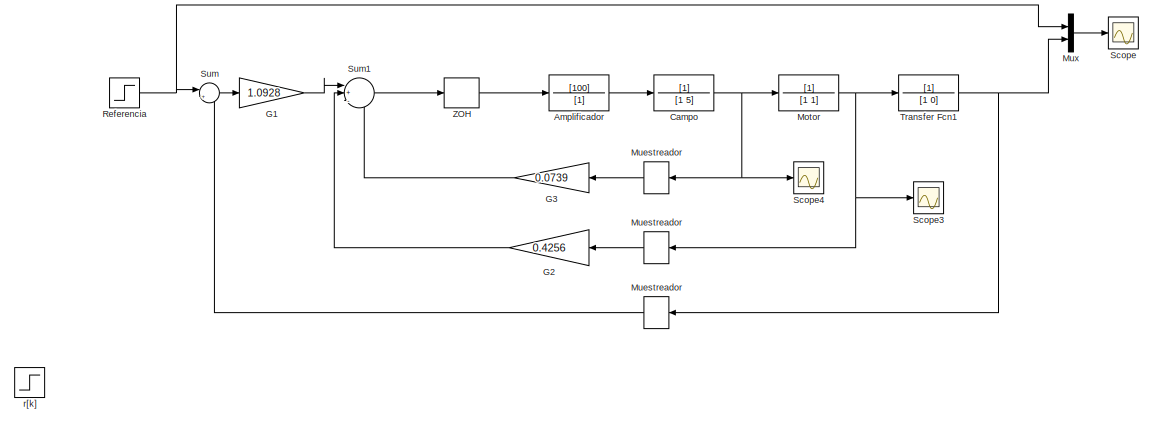
[diagram: root canvas - part 1/2, full width, top band]
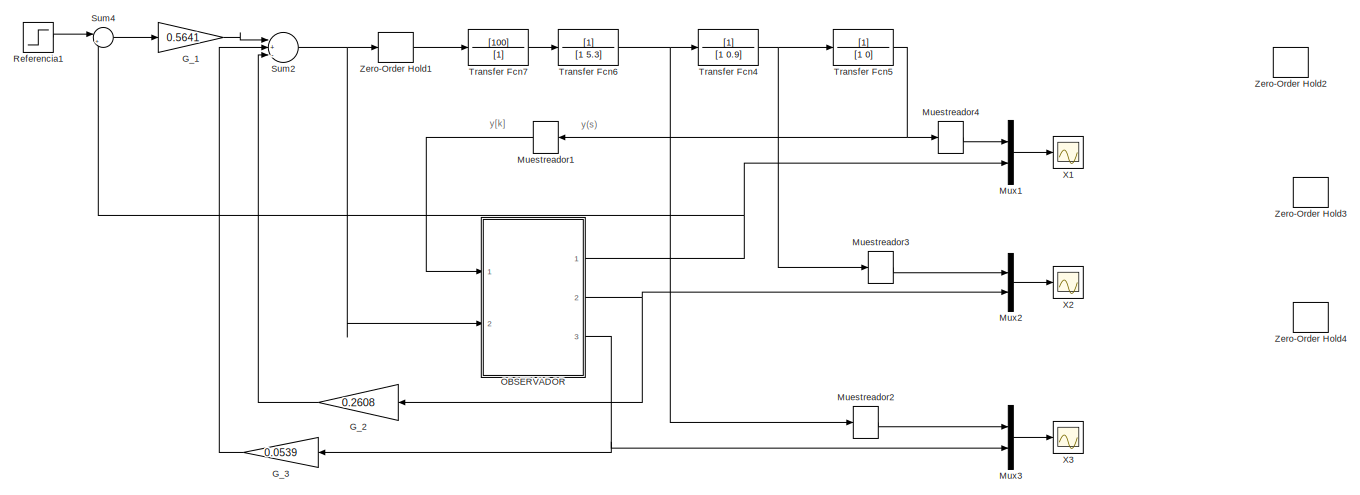
[diagram: root canvas - part 2/2, full width, bottom band]
MODEL slx_c1957c93336b
KIND model
CONFIG AbsTol = auto
CONFIG FixedStep = auto
CONFIG MaxStep = auto
CONFIG MinStep = auto
CONFIG RelTol = 1e-3
CONFIG SampleTimeConstraint = Unconstrained
CONFIG Solver = ode45
CONFIG SolverMode = SingleTasking
CONFIG SolverName = ode45
CONFIG StartTime = 0.0
CONFIG StopTime = 10.0
BLOCK [DiscreteTransferFcn]  Muestreador
  Denominator = [1]
  InputPortMap = u0
  Ports = [1, 1]
  SampleTime = Ts
BLOCK [DiscreteTransferFcn]  Muestreador1
  Denominator = [1]
  InputPortMap = u0
  Ports = [1, 1]
  SampleTime = Ts
BLOCK [DiscreteTransferFcn]  Muestreador2
  Denominator = [1]
  InputPortMap = u0
  Ports = [1, 1]
  SampleTime = Ts
BLOCK [DiscreteTransferFcn]  Muestreador3
  Denominator = [1]
  InputPortMap = u0
  Ports = [1, 1]
  SampleTime = Ts
BLOCK [DiscreteTransferFcn]  Muestreador4
  Denominator = [1]
  InputPortMap = u0
  Ports = [1, 1]
  SampleTime = Ts
BLOCK [TransferFcn] Amplificador
  Denominator = [1]
  Numerator = [100]
BLOCK [TransferFcn] Campo
  Denominator = [1 5]
BLOCK [Gain] G1
  Gain = 1.0928
  OutDataTypeStr = Inherit: Inherit via internal rule
  ParamDataTypeStr = Inherit: Inherit via internal rule
  SaturateOnIntegerOverflow = off
BLOCK [Gain] G2
  Gain = 0.4256
  OutDataTypeStr = Inherit: Inherit via internal rule
  ParamDataTypeStr = Inherit: Inherit via internal rule
  SaturateOnIntegerOverflow = off
BLOCK [Gain] G3
  Gain = 0.0739
  OutDataTypeStr = Inherit: Inherit via internal rule
  ParamDataTypeStr = Inherit: Inherit via internal rule
  SaturateOnIntegerOverflow = off
BLOCK [Gain] G_1
  Gain = 0.5641
  OutDataTypeStr = Inherit: Inherit via internal rule
  ParamDataTypeStr = Inherit: Inherit via internal rule
  SaturateOnIntegerOverflow = off
BLOCK [Gain] G_2
  Gain = 0.2608
  OutDataTypeStr = Inherit: Inherit via internal rule
  ParamDataTypeStr = Inherit: Inherit via internal rule
  SaturateOnIntegerOverflow = off
BLOCK [Gain] G_3
  Gain = 0.0539
  OutDataTypeStr = Inherit: Inherit via internal rule
  ParamDataTypeStr = Inherit: Inherit via internal rule
  SaturateOnIntegerOverflow = off
BLOCK [TransferFcn] Motor
  Denominator = [1 1]
BLOCK [DiscreteTransferFcn] Muestreador
  Denominator = [1]
  InputPortMap = u0
  Ports = [1, 1]
  SampleTime = Ts
BLOCK [DiscreteTransferFcn] Muestreador 
  Denominator = [1]
  InputPortMap = u0
  Ports = [1, 1]
  SampleTime = Ts
BLOCK [Mux] Mux
  DisplayOption = bar
  Inputs = 2
  Ports = [2, 1]
BLOCK [Mux] Mux1
  DisplayOption = bar
  Inputs = 2
  Ports = [2, 1]
BLOCK [Mux] Mux2
  DisplayOption = bar
  Inputs = 2
  Ports = [2, 1]
BLOCK [Mux] Mux3
  DisplayOption = bar
  Inputs = 2
  Ports = [2, 1]
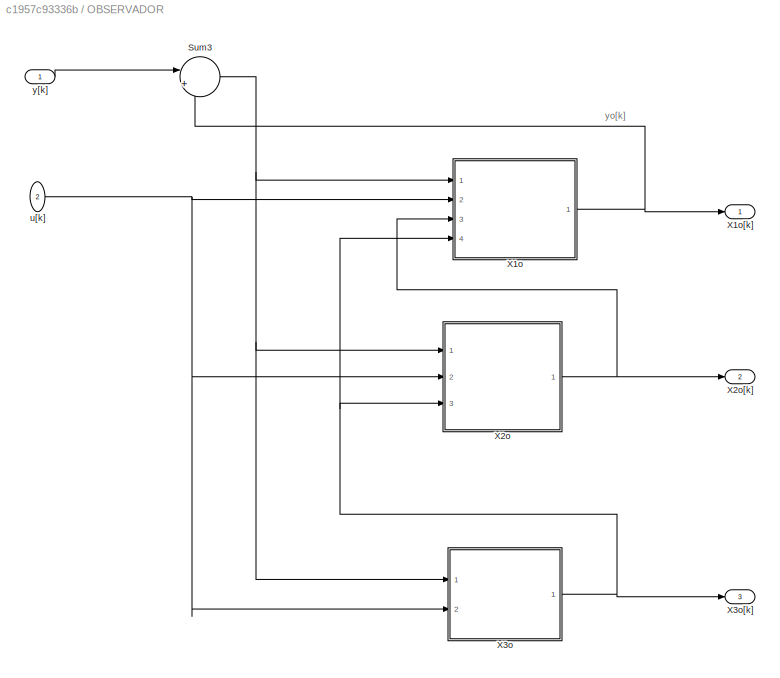
BLOCK [SubSystem] OBSERVADOR
  Ports = [2, 3]
  RequestExecContextInheritance = off
BLOCK [Sum] OBSERVADOR/Sum3
  IconShape = round
  InputSameDT = off
  Inputs = |+-
  OutDataTypeStr = Inherit: Inherit via internal rule
  Ports = [2, 1]
  SaturateOnIntegerOverflow = off
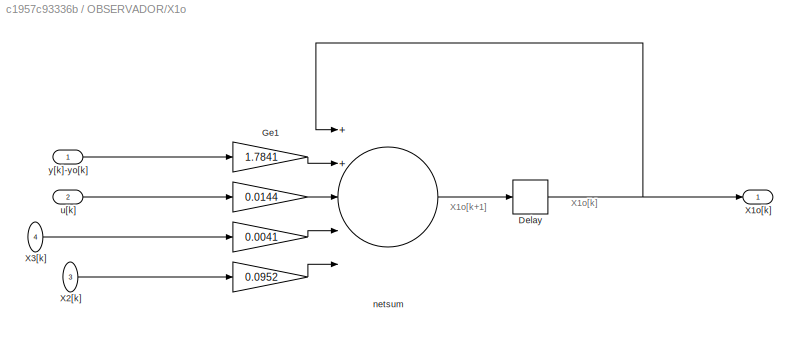
BLOCK [SubSystem] OBSERVADOR/X1o
  Ports = [4, 1]
  RequestExecContextInheritance = off
BLOCK [Gain] OBSERVADOR/X1o/ 
  Gain = 0.0144
  OutDataTypeStr = Inherit: Inherit via internal rule
  ParamDataTypeStr = Inherit: Inherit via internal rule
  SaturateOnIntegerOverflow = off
BLOCK [Gain] OBSERVADOR/X1o/   
  Gain = 0.0952
  OutDataTypeStr = Inherit: Inherit via internal rule
  ParamDataTypeStr = Inherit: Inherit via internal rule
  SaturateOnIntegerOverflow = off
BLOCK [Gain] OBSERVADOR/X1o/    
  Gain = 0.0041
  OutDataTypeStr = Inherit: Inherit via internal rule
  ParamDataTypeStr = Inherit: Inherit via internal rule
  SaturateOnIntegerOverflow = off
BLOCK [Delay] OBSERVADOR/X1o/Delay
  DelayLength = 1
  InitialCondition = 0
  InputPortMap = u0
  Ports = [1, 1]
BLOCK [Gain] OBSERVADOR/X1o/Ge1
  Gain = 1.7841
  OutDataTypeStr = Inherit: Inherit via internal rule
  ParamDataTypeStr = Inherit: Inherit via internal rule
  SaturateOnIntegerOverflow = off
BLOCK [Outport] OBSERVADOR/X1o/X1o[k]
  IconDisplay = Port number
BLOCK [Inport] OBSERVADOR/X1o/X2[k]
  IconDisplay = Port number
  Port = 3
BLOCK [Inport] OBSERVADOR/X1o/X3[k]
  IconDisplay = Port number
  Port = 4
BLOCK [Sum] OBSERVADOR/X1o/netsum
  Inputs = 5
  Ports = [5, 1]
BLOCK [Inport] OBSERVADOR/X1o/u[k]
  IconDisplay = Port number
  Port = 2
BLOCK [Inport] OBSERVADOR/X1o/y[k]-yo[k]
  IconDisplay = Port number
BLOCK [Outport] OBSERVADOR/X1o[k]
  IconDisplay = Port number
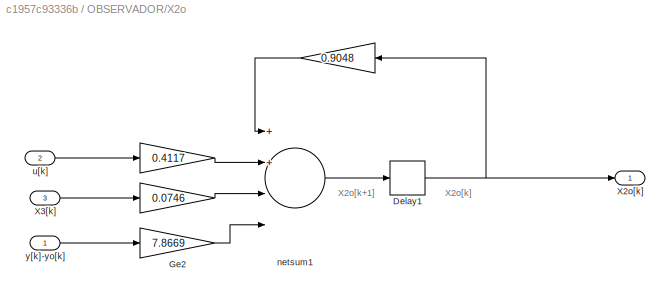
BLOCK [SubSystem] OBSERVADOR/X2o
  Ports = [3, 1]
  RequestExecContextInheritance = off
BLOCK [Gain] OBSERVADOR/X2o/ 
  Gain = 0.9048
  OutDataTypeStr = Inherit: Inherit via internal rule
  ParamDataTypeStr = Inherit: Inherit via internal rule
  SaturateOnIntegerOverflow = off
BLOCK [Gain] OBSERVADOR/X2o/     
  Gain = 0.0746
  OutDataTypeStr = Inherit: Inherit via internal rule
  ParamDataTypeStr = Inherit: Inherit via internal rule
  SaturateOnIntegerOverflow = off
BLOCK [Delay] OBSERVADOR/X2o/Delay1
  DelayLength = 1
  InitialCondition = 0
  InputPortMap = u0
  Ports = [1, 1]
BLOCK [Gain] OBSERVADOR/X2o/Ge2
  Gain = 7.8669
  OutDataTypeStr = Inherit: Inherit via internal rule
  ParamDataTypeStr = Inherit: Inherit via internal rule
  SaturateOnIntegerOverflow = off
BLOCK [Outport] OBSERVADOR/X2o/X2o[k]
  IconDisplay = Port number
BLOCK [Inport] OBSERVADOR/X2o/X3[k]
  IconDisplay = Port number
  Port = 3
BLOCK [Sum] OBSERVADOR/X2o/netsum1
  Inputs = 4
  Ports = [4, 1]
BLOCK [Inport] OBSERVADOR/X2o/u[k]
  IconDisplay = Port number
  Port = 2
BLOCK [Inport] OBSERVADOR/X2o/y[k]-yo[k]
  IconDisplay = Port number
BLOCK [Outport] OBSERVADOR/X2o[k]
  IconDisplay = Port number
  Port = 2
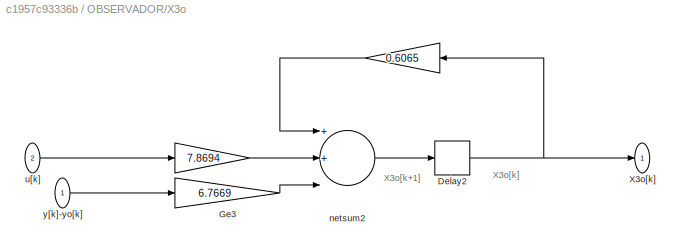
BLOCK [SubSystem] OBSERVADOR/X3o
  Ports = [2, 1]
  RequestExecContextInheritance = off
BLOCK [Gain] OBSERVADOR/X3o/ 
  Gain = 0.6065
  OutDataTypeStr = Inherit: Inherit via internal rule
  ParamDataTypeStr = Inherit: Inherit via internal rule
  SaturateOnIntegerOverflow = off
BLOCK [Delay] OBSERVADOR/X3o/Delay2
  DelayLength = 1
  InitialCondition = 0
  InputPortMap = u0
  Ports = [1, 1]
BLOCK [Gain] OBSERVADOR/X3o/Ge3
  Gain = 6.7669
  OutDataTypeStr = Inherit: Inherit via internal rule
  ParamDataTypeStr = Inherit: Inherit via internal rule
  SaturateOnIntegerOverflow = off
BLOCK [Outport] OBSERVADOR/X3o/X3o[k]
  IconDisplay = Port number
BLOCK [Sum] OBSERVADOR/X3o/netsum2
  Inputs = 3
  Ports = [3, 1]
BLOCK [Inport] OBSERVADOR/X3o/u[k]
  IconDisplay = Port number
  Port = 2
BLOCK [Inport] OBSERVADOR/X3o/y[k]-yo[k]
  IconDisplay = Port number
BLOCK [Outport] OBSERVADOR/X3o[k]
  IconDisplay = Port number
  Port = 3
BLOCK [Inport] OBSERVADOR/u[k]
  IconDisplay = Port number
  Port = 2
BLOCK [Inport] OBSERVADOR/y[k]
  IconDisplay = Port number
BLOCK [Step] Referencia
  SampleTime = Ts
  Time = 0
BLOCK [Step] Referencia1
  SampleTime = Ts
  Time = 0
BLOCK [Scope] Scope
  Floating = off
  LimitDataPoints = off
  NumInputPorts = 1
  Ports = [1]
  SaveName = input_output
  SaveToWorkspace = on
  YMax = 1.1738
  YMin = -0.13042
BLOCK [Scope] Scope3
  Floating = off
  LimitDataPoints = off
  NumInputPorts = 1
  Ports = [1]
  SaveName = input_output3
  SaveToWorkspace = on
  YMax = 1.1738
  YMin = -0.13042
BLOCK [Scope] Scope4
  Floating = off
  LimitDataPoints = off
  NumInputPorts = 1
  Ports = [1]
  SaveName = input_output4
  SaveToWorkspace = on
  YMax = 1.1738
  YMin = -0.13042
BLOCK [Sum] Sum
  IconShape = round
  InputSameDT = off
  Inputs = |+-
  OutDataTypeStr = Inherit: Inherit via internal rule
  Ports = [2, 1]
  SaturateOnIntegerOverflow = off
BLOCK [Sum] Sum1
  IconShape = round
  InputSameDT = off
  Inputs = |+--
  OutDataTypeStr = Inherit: Inherit via internal rule
  Ports = [3, 1]
  SaturateOnIntegerOverflow = off
BLOCK [Sum] Sum2
  IconShape = round
  InputSameDT = off
  Inputs = |+--
  OutDataTypeStr = Inherit: Inherit via internal rule
  Ports = [3, 1]
  SaturateOnIntegerOverflow = off
BLOCK [Sum] Sum4
  IconShape = round
  InputSameDT = off
  Inputs = |+-
  OutDataTypeStr = Inherit: Inherit via internal rule
  Ports = [2, 1]
  SaturateOnIntegerOverflow = off
BLOCK [TransferFcn] Transfer Fcn1
  Denominator = [1 0]
BLOCK [TransferFcn] Transfer Fcn4
  Denominator = [1 0.9]
BLOCK [TransferFcn] Transfer Fcn5
  Denominator = [1 0]
BLOCK [TransferFcn] Transfer Fcn6
  Denominator = [1 5.3]
BLOCK [TransferFcn] Transfer Fcn7
  Denominator = [1]
  Numerator = [100]
BLOCK [Scope] X1
  Floating = off
  LimitDataPoints = off
  NumInputPorts = 1
  Ports = [1]
  SaveName = X1O
  SaveToWorkspace = on
  YMax = 1.1738
  YMin = -0.13042
BLOCK [Scope] X2
  Floating = off
  LimitDataPoints = off
  NumInputPorts = 1
  Ports = [1]
  SaveName = X2O
  SaveToWorkspace = on
  YMax = 1.1738
  YMin = -0.13042
BLOCK [Scope] X3
  Floating = off
  LimitDataPoints = off
  NumInputPorts = 1
  Ports = [1]
  SaveName = X3O
  SaveToWorkspace = on
  YMax = 1.1738
  YMin = -0.13042
BLOCK [ZeroOrderHold] ZOH
  SampleTime = Ts
BLOCK [ZeroOrderHold] Zero-Order Hold1
  SampleTime = Ts
BLOCK [ZeroOrderHold] Zero-Order Hold2
  SampleTime = Ts
BLOCK [ZeroOrderHold] Zero-Order Hold3
  SampleTime = Ts
BLOCK [ZeroOrderHold] Zero-Order Hold4
  SampleTime = Ts
BLOCK [Step] r[k]
  SampleTime = Ts
  Time = 0
ANNOTATION (root): y(s)
ANNOTATION (root): y[k]
ANNOTATION OBSERVADOR: yo[k]
ANNOTATION OBSERVADOR/X1o: X1o[k+1]
ANNOTATION OBSERVADOR/X1o: X1o[k]
ANNOTATION OBSERVADOR/X2o: X2o[k+1]
ANNOTATION OBSERVADOR/X2o: X2o[k]
ANNOTATION OBSERVADOR/X3o: X3o[k+1]
ANNOTATION OBSERVADOR/X3o: X3o[k]
LINE  Muestreador1:1 -> OBSERVADOR:1
LINE  Muestreador2:1 -> Mux3:1
LINE  Muestreador3:1 -> Mux2:1
LINE  Muestreador4:1 -> Mux1:1
LINE  Muestreador:1 -> Sum:2
LINE Amplificador:1 -> Campo:1
NET Campo:1 -> Motor:1, Muestreador:1, Scope4:1
LINE G1:1 -> Sum1:1
LINE G2:1 -> Sum1:2
LINE G3:1 -> Sum1:3
LINE G_1:1 -> Sum2:1
LINE G_2:1 -> Sum2:3
LINE G_3:1 -> Sum2:2
NET Motor:1 -> Muestreador :1, Scope3:1, Transfer Fcn1:1
LINE Muestreador :1 -> G2:1
LINE Muestreador:1 -> G3:1
LINE Mux1:1 -> X1:1
LINE Mux2:1 -> X2:1
LINE Mux3:1 -> X3:1
LINE Mux:1 -> Scope:1
NET OBSERVADOR/Sum3:1 -> OBSERVADOR/X1o:1, OBSERVADOR/X2o:1, OBSERVADOR/X3o:1
LINE OBSERVADOR/X1o/    :1 -> OBSERVADOR/X1o/netsum:4
LINE OBSERVADOR/X1o/   :1 -> OBSERVADOR/X1o/netsum:5
LINE OBSERVADOR/X1o/ :1 -> OBSERVADOR/X1o/netsum:3
NET OBSERVADOR/X1o/Delay:1 -> OBSERVADOR/X1o/X1o[k]:1, OBSERVADOR/X1o/netsum:1
LINE OBSERVADOR/X1o/Ge1:1 -> OBSERVADOR/X1o/netsum:2
LINE OBSERVADOR/X1o/X2[k]:1 -> OBSERVADOR/X1o/   :1
LINE OBSERVADOR/X1o/X3[k]:1 -> OBSERVADOR/X1o/    :1
LINE OBSERVADOR/X1o/netsum:1 -> OBSERVADOR/X1o/Delay:1
LINE OBSERVADOR/X1o/u[k]:1 -> OBSERVADOR/X1o/ :1
LINE OBSERVADOR/X1o/y[k]-yo[k]:1 -> OBSERVADOR/X1o/Ge1:1
NET OBSERVADOR/X1o:1 -> OBSERVADOR/Sum3:2, OBSERVADOR/X1o[k]:1
LINE OBSERVADOR/X2o/     :1 -> OBSERVADOR/X2o/netsum1:3
NET OBSERVADOR/X2o/ :1 -> OBSERVADOR/X2o/netsum1:1, OBSERVADOR/X2o/netsum1:2
NET OBSERVADOR/X2o/Delay1:1 -> OBSERVADOR/X2o/ :1, OBSERVADOR/X2o/X2o[k]:1
LINE OBSERVADOR/X2o/Ge2:1 -> OBSERVADOR/X2o/netsum1:4
LINE OBSERVADOR/X2o/X3[k]:1 -> OBSERVADOR/X2o/     :1
LINE OBSERVADOR/X2o/netsum1:1 -> OBSERVADOR/X2o/Delay1:1
LINE OBSERVADOR/X2o/u[k]:1 -> OBSERVADOR/X2o/ :1
LINE OBSERVADOR/X2o/y[k]-yo[k]:1 -> OBSERVADOR/X2o/Ge2:1
NET OBSERVADOR/X2o:1 -> OBSERVADOR/X1o:3, OBSERVADOR/X2o[k]:1
NET OBSERVADOR/X3o/ :1 -> OBSERVADOR/X3o/netsum2:1, OBSERVADOR/X3o/netsum2:2
NET OBSERVADOR/X3o/Delay2:1 -> OBSERVADOR/X3o/ :1, OBSERVADOR/X3o/X3o[k]:1
LINE OBSERVADOR/X3o/Ge3:1 -> OBSERVADOR/X3o/netsum2:3
LINE OBSERVADOR/X3o/netsum2:1 -> OBSERVADOR/X3o/Delay2:1
LINE OBSERVADOR/X3o/u[k]:1 -> OBSERVADOR/X3o/ :1
LINE OBSERVADOR/X3o/y[k]-yo[k]:1 -> OBSERVADOR/X3o/Ge3:1
NET OBSERVADOR/X3o:1 -> OBSERVADOR/X1o:4, OBSERVADOR/X2o:3, OBSERVADOR/X3o[k]:1
NET OBSERVADOR/u[k]:1 -> OBSERVADOR/X1o:2, OBSERVADOR/X2o:2, OBSERVADOR/X3o:2
LINE OBSERVADOR/y[k]:1 -> OBSERVADOR/Sum3:1
NET OBSERVADOR:1 -> Mux1:2, Sum4:2
NET OBSERVADOR:2 -> G_2:1, Mux2:2
NET OBSERVADOR:3 -> G_3:1, Mux3:2
LINE Referencia1:1 -> Sum4:1
NET Referencia:1 -> Mux:1, Sum:1
LINE Sum1:1 -> ZOH:1
NET Sum2:1 -> OBSERVADOR:2, Zero-Order Hold1:1
LINE Sum4:1 -> G_1:1
LINE Sum:1 -> G1:1
NET Transfer Fcn1:1 ->  Muestreador:1, Mux:2
NET Transfer Fcn4:1 ->  Muestreador3:1, Transfer Fcn5:1
NET Transfer Fcn5:1 ->  Muestreador1:1,  Muestreador4:1
NET Transfer Fcn6:1 ->  Muestreador2:1, Transfer Fcn4:1
LINE Transfer Fcn7:1 -> Transfer Fcn6:1
LINE ZOH:1 -> Amplificador:1
LINE Zero-Order Hold1:1 -> Transfer Fcn7:1
note: NET lines group one-source signal fan-out (src -> all destinations, sorted); 1:1 wires keep LINE
